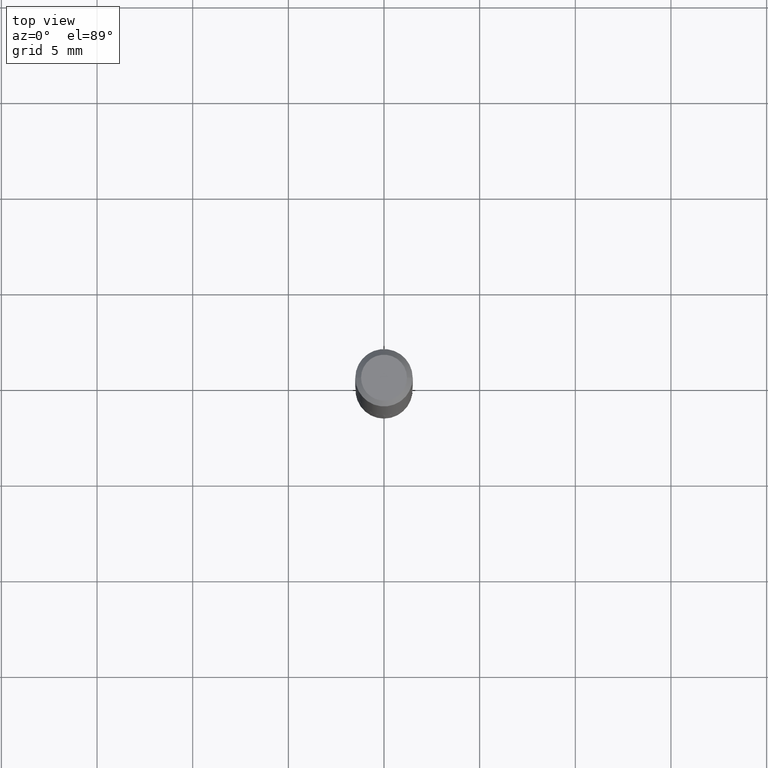
[diagram: clean part render]
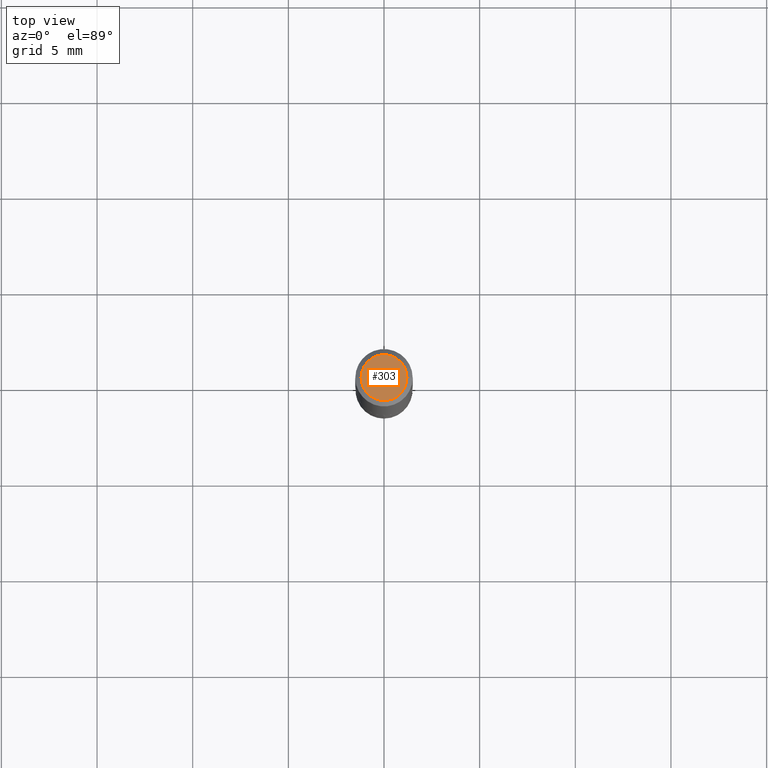
[diagram: same view with one face highlighted and labeled with its STEP entity id]
A machine part, top view. The second image highlights one B-rep face of the part: STEP entity #303.
In plain terms, the highlighted planar face has unit normal (0, -0, -1).
Its self-contained STEP definition (entity closure, byte-faithful):
#5 = VERTEX_POINT ( 'NONE', #102 ) ;
#15 = EDGE_CURVE ( 'NONE', #5, #416, #272, .T. ) ;
#19 = CARTESIAN_POINT ( 'NONE',  ( 4.132873053354867254E-48, -5.900647395337818946E-34, -1.690012582823346072E-19 ) ) ;
#21 = CIRCLE ( 'NONE', #425, 0.04724000000000000421 ) ;
#23 = CARTESIAN_POINT ( 'NONE',  ( 0.04724000000000000421, -3.852183633974369345E-16, -3.380025165621689721E-19 ) ) ;
#55 = FACE_OUTER_BOUND ( 'NONE', #76, .T. ) ;
#64 = AXIS2_PLACEMENT_3D ( 'NONE', #168, #138, #292 ) ;
#76 = EDGE_LOOP ( 'NONE', ( #197, #410 ) ) ;
#102 = CARTESIAN_POINT ( 'NONE',  ( -0.04724000000000000421, 3.504923541997677355E-16, -3.380025165670481712E-19 ) ) ;
#138 = DIRECTION ( 'NONE',  ( -2.445468806185136597E-29, 3.491481338843145583E-15, 1.000000000000000000 ) ) ;
#161 = CARTESIAN_POINT ( 'NONE',  ( 8.265746106709734507E-48, -1.180129479067563789E-33, -3.380025165646692144E-19 ) ) ;
#168 = CARTESIAN_POINT ( 'NONE',  ( 8.265746106709734507E-48, -1.180129479067563789E-33, -3.380025165646692144E-19 ) ) ;
#187 = AXIS2_PLACEMENT_3D ( 'NONE', #19, #238, #478 ) ;
#197 = ORIENTED_EDGE ( 'NONE', *, *, #15, .T. ) ;
#238 = DIRECTION ( 'NONE',  ( 2.438088387897960049E-29, -3.491481338843145188E-15, -1.000000000000000000 ) ) ;
#272 = CIRCLE ( 'NONE', #64, 0.04724000000000000421 ) ;
#292 = DIRECTION ( 'NONE',  ( 1.000000000000000000, -6.982962677686266711E-15, 4.876185090822587894E-29 ) ) ;
#303 = ADVANCED_FACE ( 'NONE', ( #55 ), #356, .F. ) ;
#320 = DIRECTION ( 'NONE',  ( 1.000000000000000000, -6.982962677686266711E-15, 4.876185090822587894E-29 ) ) ;
#325 = EDGE_CURVE ( 'NONE', #416, #5, #21, .T. ) ;
#356 = PLANE ( 'NONE',  #187 ) ;
#401 = DIRECTION ( 'NONE',  ( -2.445468806185136597E-29, 3.491481338843145583E-15, 1.000000000000000000 ) ) ;
#410 = ORIENTED_EDGE ( 'NONE', *, *, #325, .T. ) ;
#416 = VERTEX_POINT ( 'NONE', #23 ) ;
#425 = AXIS2_PLACEMENT_3D ( 'NONE', #161, #401, #320 ) ;
#478 = DIRECTION ( 'NONE',  ( -1.000000000000000000, 6.982962677686265922E-15, -4.876176775795935793E-29 ) ) ;